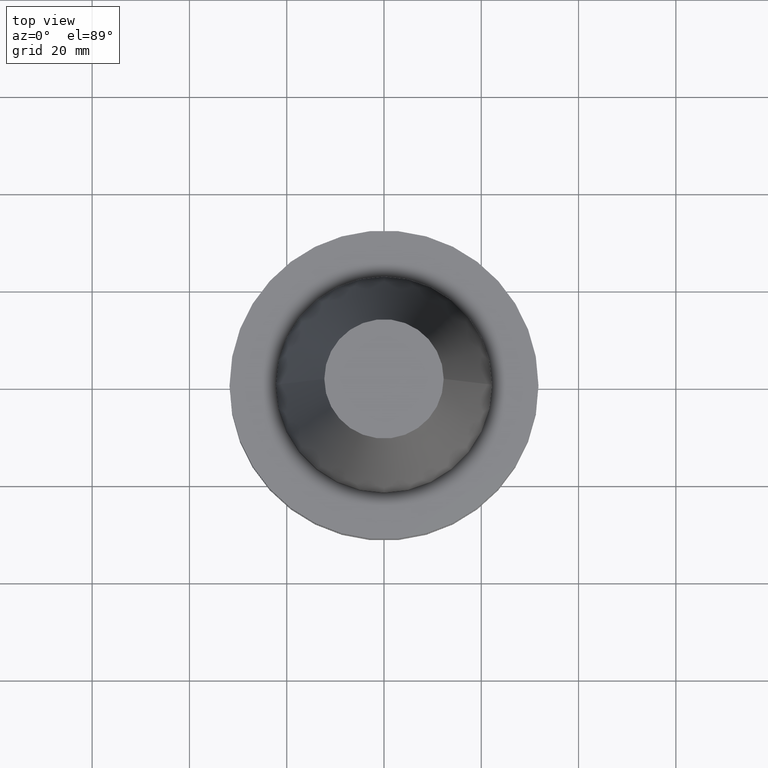
[diagram: clean part render]
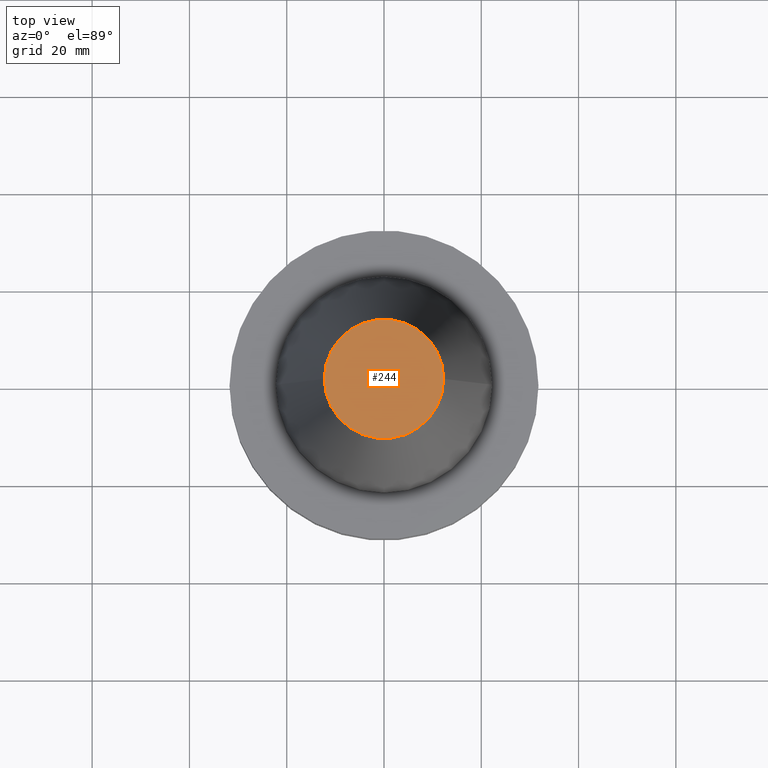
[diagram: same view with one face highlighted and labeled with its STEP entity id]
A machine part, top view. The second image highlights one B-rep face of the part: STEP entity #244.
In plain terms, the highlighted planar face has unit normal (0, 0, -1).
Its self-contained STEP definition (entity closure, byte-faithful):
#43 = CARTESIAN_POINT ( 'NONE',  ( -12.27178102086201150, 0.000000000000000000, 68.25000000000000000 ) ) ;
#53 = AXIS2_PLACEMENT_3D ( 'NONE', #327, #450, #685 ) ;
#63 = ORIENTED_EDGE ( 'NONE', *, *, #557, .T. ) ;
#107 = DIRECTION ( 'NONE',  ( 1.000000000000000000, 0.000000000000000000, 0.000000000000000000 ) ) ;
#143 = CIRCLE ( 'NONE', #393, 12.27178102086201150 ) ;
#163 = CARTESIAN_POINT ( 'NONE',  ( 0.000000000000000000, 12.27178102086201150, 68.25000000000000000 ) ) ;
#166 = PLANE ( 'NONE',  #753 ) ;
#197 = EDGE_CURVE ( 'NONE', #292, #598, #143, .T. ) ;
#237 = CARTESIAN_POINT ( 'NONE',  ( 0.000000000000000000, 0.000000000000000000, 68.25000000000000000 ) ) ;
#244 = ADVANCED_FACE ( 'NONE', ( #408 ), #166, .F. ) ;
#292 = VERTEX_POINT ( 'NONE', #43 ) ;
#327 = CARTESIAN_POINT ( 'NONE',  ( 0.000000000000000000, 0.000000000000000000, 68.25000000000000000 ) ) ;
#393 = AXIS2_PLACEMENT_3D ( 'NONE', #237, #706, #107 ) ;
#408 = FACE_OUTER_BOUND ( 'NONE', #711, .T. ) ;
#450 = DIRECTION ( 'NONE',  ( -0.000000000000000000, -0.000000000000000000, 1.000000000000000000 ) ) ;
#540 = DIRECTION ( 'NONE',  ( 0.000000000000000000, 0.000000000000000000, -1.000000000000000000 ) ) ;
#541 = ORIENTED_EDGE ( 'NONE', *, *, #197, .T. ) ;
#557 = EDGE_CURVE ( 'NONE', #598, #292, #618, .T. ) ;
#587 = DIRECTION ( 'NONE',  ( -1.000000000000000000, 0.000000000000000000, -0.000000000000000000 ) ) ;
#598 = VERTEX_POINT ( 'NONE', #768 ) ;
#618 = CIRCLE ( 'NONE', #53, 12.27178102086201150 ) ;
#685 = DIRECTION ( 'NONE',  ( 1.000000000000000000, 0.000000000000000000, 0.000000000000000000 ) ) ;
#706 = DIRECTION ( 'NONE',  ( -0.000000000000000000, -0.000000000000000000, 1.000000000000000000 ) ) ;
#711 = EDGE_LOOP ( 'NONE', ( #541, #63 ) ) ;
#753 = AXIS2_PLACEMENT_3D ( 'NONE', #163, #540, #587 ) ;
#768 = CARTESIAN_POINT ( 'NONE',  ( 12.27178102086201150, 2.112318622904291439E-15, 68.25000000000000000 ) ) ;